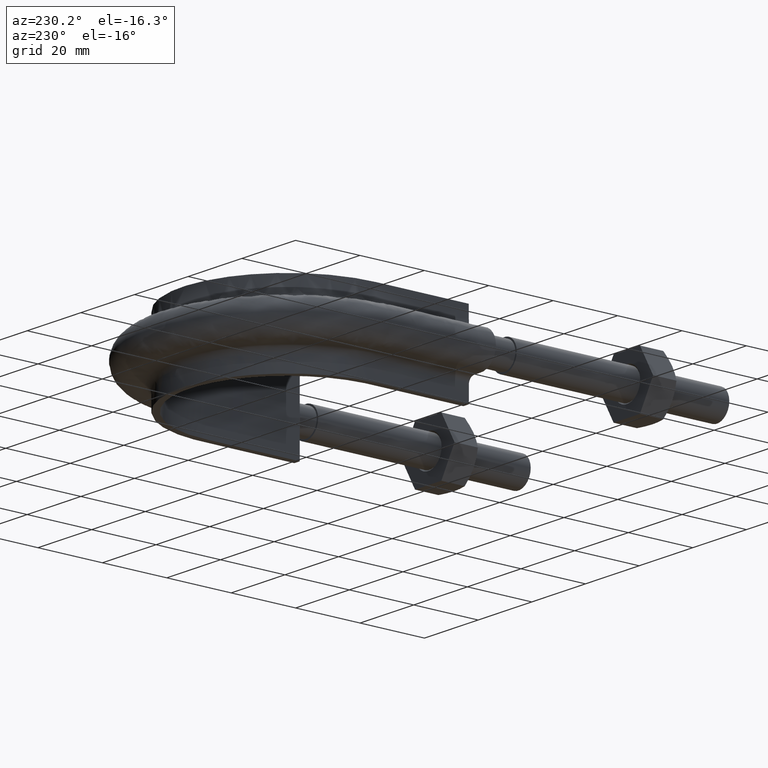
[diagram: clean part render]
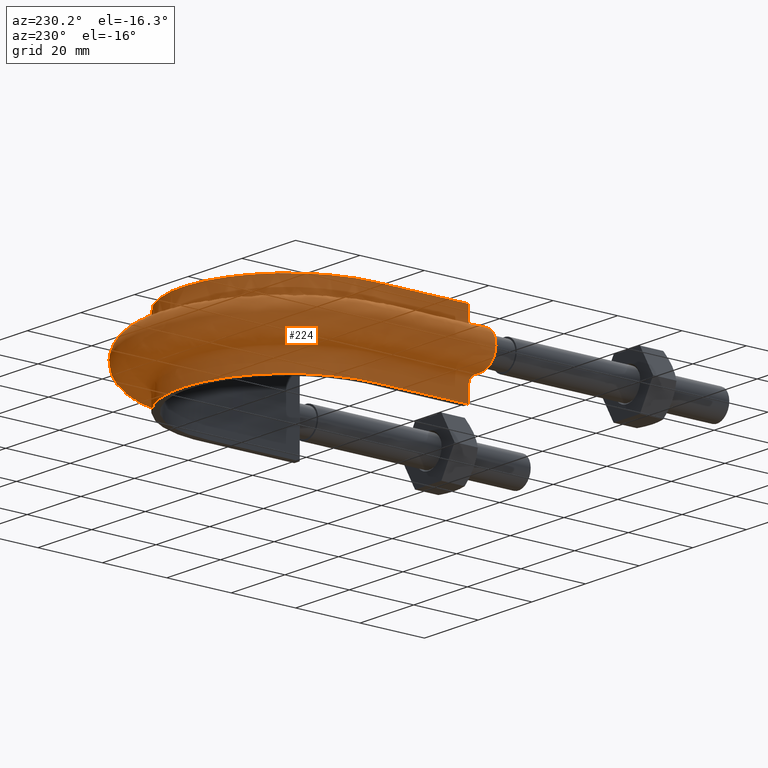
[diagram: same view with one face highlighted and labeled with its STEP entity id]
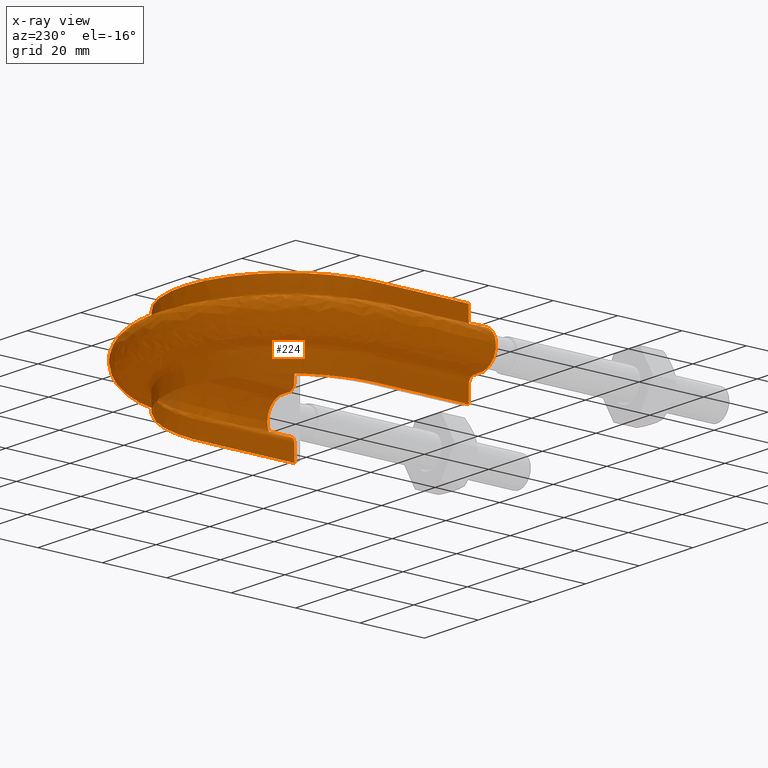
[diagram: x-ray of the same camera — body ghosted, the highlighted face saturated]
A machine part, auxiliary view. The second image highlights one B-rep face of the part: STEP entity #224.
The next image is the same camera in x-ray: the body ghosted, the highlighted face saturated — about 1% of this face is hidden behind the body in this view.
In plain terms, the highlighted face is a freeform B-spline surface patch.
Its self-contained STEP definition (entity closure, byte-faithful):
#224 = ADVANCED_FACE( '', ( #309 ), #310, .F. );
#309 = FACE_OUTER_BOUND( '', #631, .T. );
#310 = B_SPLINE_SURFACE_WITH_KNOTS( '', 3, 3, ( ( #632, #633, #634, #635, #636, #637, #638, #639, #640, #641, #642, #643, #644, #645, #646, #647, #648 ), ( #649, #650, #651, #652, #653, #654, #655, #656, #657, #658, #659, #660, #661, #662, #663, #664, #665 ), ( #666, #667, #668, #669, #670, #671, #672, #673, #674, #675, #676, #677, #678, #679, #680, #681, #682 ), ( #683, #684, #685, #686, #687, #688, #689, #690, #691, #692, #693, #694, #695, #696, #697, #698, #699 ), ( #700, #701, #702, #703, #704, #705, #706, #707, #708, #709, #710, #711, #712, #713, #714, #715, #716 ), ( #717, #718, #719, #720, #721, #722, #723, #724, #725, #726, #727, #728, #729, #730, #731, #732, #733 ), ( #734, #735, #736, #737, #738, #739, #740, #741, #742, #743, #744, #745, #746, #747, #748, #749, #750 ), ( #751, #752, #753, #754, #755, #756, #757, #758, #759, #760, #761, #762, #763, #764, #765, #766, #767 ), ( #768, #769, #770, #771, #772, #773, #774, #775, #776, #777, #778, #779, #780, #781, #782, #783, #784 ), ( #785, #786, #787, #788, #789, #790, #791, #792, #793, #794, #795, #796, #797, #798, #799, #800, #801 ), ( #802, #803, #804, #805, #806, #807, #808, #809, #810, #811, #812, #813, #814, #815, #816, #817, #818 ), ( #819, #820, #821, #822, #823, #824, #825, #826, #827, #828, #829, #830, #831, #832, #833, #834, #835 ), ( #836, #837, #838, #839, #840, #841, #842, #843, #844, #845, #846, #847, #848, #849, #850, #851, #852 ), ( #853, #854, #855, #856, #857, #858, #859, #860, #861, #862, #863, #864, #865, #866, #867, #868, #869 ), ( #870, #871, #872, #873, #874, #875, #876, #877, #878, #879, #880, #881, #882, #883, #884, #885, #886 ), ( #887, #888, #889, #890, #891, #892, #893, #894, #895, #896, #897, #898, #899, #900, #901, #902, #903 ), ( #904, #905, #906, #907, #908, #909, #910, #911, #912, #913, #914, #915, #916, #917, #918, #919, #920 ), ( #921, #922, #923, #924, #925, #926, #927, #928, #929, #930, #931, #932, #933, #934, #935, #936, #937 ), ( #938, #939, #940, #941, #942, #943, #944, #945, #946, #947, #948, #949, #950, #951, #952, #953, #954 ), ( #955, #956, #957, #958, #959, #960, #961, #962, #963, #964, #965, #966, #967, #968, #969, #970, #971 ), ( #972, #973, #974, #975, #976, #977, #978, #979, #980, #981, #982, #983, #984, #985, #986, #987, #988 ), ( #989, #990, #991, #992, #993, #994, #995, #996, #997, #998, #999, #1000, #1001, #1002, #1003, #1004, #1005 ), ( #1006, #1007, #1008, #1009, #1010, #1011, #1012, #1013, #1014, #1015, #1016, #1017, #1018, #1019, #1020, #1021, #1022 ), ( #1023, #1024, #1025, #1026, #1027, #1028, #1029, #1030, #1031, #1032, #1033, #1034, #1035, #1036, #1037, #1038, #1039 ), ( #1040, #1041, #1042, #1043, #1044, #1045, #1046, #1047, #1048, #1049, #1050, #1051, #1052, #1053, #1054, #1055, #1056 ), ( #1057, #1058, #1059, #1060, #1061, #1062, #1063, #1064, #1065, #1066, #1067, #1068, #1069, #1070, #1071, #1072, #1073 ), ( #1074, #1075, #1076, #1077, #1078, #1079, #1080, #1081, #1082, #1083, #1084, #1085, #1086, #1087, #1088, #1089, #1090 ), ( #1091, #1092, #1093, #1094, #1095, #1096, #1097, #1098, #1099, #1100, #1101, #1102, #1103, #1104, #1105, #1106, #1107 ), ( #1108, #1109, #1110, #1111, #1112, #1113, #1114, #1115, #1116, #1117, #1118, #1119, #1120, #1121, #1122, #1123, #1124 ), ( #1125, #1126, #1127, #1128, #1129, #1130, #1131, #1132, #1133, #1134, #1135, #1136, #1137, #1138, #1139, #1140, #1141 ), ( #1142, #1143, #1144, #1145, #1146, #1147, #1148, #1149, #1150, #1151, #1152, #1153, #1154, #1155, #1156, #1157, #1158 ) ), .UNSPECIFIED., .F., .F., .F., ( 4, 3, 1, 1, 1, 3, 3, 1, 1, 1, 3, 3, 1, 1, 1, 3, 4 ), ( 4, 3, 1, 1, 1, 1, 1, 1, 1, 3, 4 ), ( 0.105263157894737, 0.157894736842105, 0.210526315789474, 0.263157894736842, 0.315789473684211, 0.368421052631579, 0.421052631578947, 0.473684210526316, 0.526315789473684, 0.578947368421053, 0.631578947368421, 0.684210526315789, 0.736842105263158, 0.789473684210526, 0.842105263157895, 0.894736842105263, 0.947368421052632 ), ( 0.000000000000000, 1.00000000000000, 1.50000000000000, 2.00000000000000, 3.00000000000000, 4.00000000000000, 5.00000000000000, 6.00000000000000, 6.50000000000000, 7.00000000000000, 8.00000000000000 ), .UNSPECIFIED. );
#631 = EDGE_LOOP( '', ( #1512, #1513, #1514, #1515 ) );
#632 = CARTESIAN_POINT( '', ( -32.5000000000000, 69.4000000000000, 12.5000000000000 ) );
#633 = CARTESIAN_POINT( '', ( -32.5000000000000, 80.4333333333333, 12.5000000000000 ) );
#634 = CARTESIAN_POINT( '', ( -32.5000000000000, 91.4666666666667, 12.5000000000000 ) );
#635 = CARTESIAN_POINT( '', ( -32.5000000000000, 102.500000000000, 12.5000000000000 ) );
#636 = CARTESIAN_POINT( '', ( -32.5000000000000, 105.325542369813, 12.5000000000000 ) );
#637 = CARTESIAN_POINT( '', ( -31.7387347919768, 111.008617759312, 12.5000000000000 ) );
#638 = CARTESIAN_POINT( '', ( -27.3871545291852, 121.582731692400, 12.5000000000000 ) );
#639 = CARTESIAN_POINT( '', ( -17.0093196223625, 131.962325971844, 12.5000000000000 ) );
#640 = CARTESIAN_POINT( '', ( 3.23306948061794E-014, 136.518837014078, 12.5000000000000 ) );
#641 = CARTESIAN_POINT( '', ( 17.0093196223626, 131.962325971844, 12.5000000000000 ) );
#642 = CARTESIAN_POINT( '', ( 27.3871545291853, 121.582731692400, 12.5000000000000 ) );
#643 = CARTESIAN_POINT( '', ( 31.7387347919769, 111.008617759312, 12.5000000000000 ) );
#644 = CARTESIAN_POINT( '', ( 32.5000000000000, 105.325542369813, 12.5000000000000 ) );
#645 = CARTESIAN_POINT( '', ( 32.5000000000000, 102.500000000000, 12.5000000000000 ) );
#646 = CARTESIAN_POINT( '', ( 32.5000000000000, 91.4666666666666, 12.5000000000000 ) );
#647 = CARTESIAN_POINT( '', ( 32.5000000000000, 80.4333333333333, 12.5000000000000 ) );
#648 = CARTESIAN_POINT( '', ( 32.5000000000000, 69.4000000000000, 12.5000000000000 ) );
#649 = CARTESIAN_POINT( '', ( -32.5000000000000, 69.4000000000000, 10.8666666666667 ) );
#650 = CARTESIAN_POINT( '', ( -32.5000000000000, 80.4333333333333, 10.8666666666667 ) );
#651 = CARTESIAN_POINT( '', ( -32.5000000000000, 91.4666666666667, 10.8666666666667 ) );
#652 = CARTESIAN_POINT( '', ( -32.5000000000000, 102.500000000000, 10.8666666666667 ) );
#653 = CARTESIAN_POINT( '', ( -32.5000000000000, 105.325542369813, 10.8666666666667 ) );
#654 = CARTESIAN_POINT( '', ( -31.7387347919768, 111.008617759312, 10.8666666666667 ) );
#655 = CARTESIAN_POINT( '', ( -27.3871545291852, 121.582731692400, 10.8666666666667 ) );
#656 = CARTESIAN_POINT( '', ( -17.0093196223625, 131.962325971844, 10.8666666666667 ) );
#657 = CARTESIAN_POINT( '', ( 3.23306948061794E-014, 136.518837014078, 10.8666666666667 ) );
#658 = CARTESIAN_POINT( '', ( 17.0093196223626, 131.962325971844, 10.8666666666667 ) );
#659 = CARTESIAN_POINT( '', ( 27.3871545291853, 121.582731692400, 10.8666666666667 ) );
#660 = CARTESIAN_POINT( '', ( 31.7387347919769, 111.008617759312, 10.8666666666667 ) );
#661 = CARTESIAN_POINT( '', ( 32.5000000000000, 105.325542369813, 10.8666666666667 ) );
#662 = CARTESIAN_POINT( '', ( 32.5000000000000, 102.500000000000, 10.8666666666667 ) );
#663 = CARTESIAN_POINT( '', ( 32.5000000000000, 91.4666666666666, 10.8666666666667 ) );
#664 = CARTESIAN_POINT( '', ( 32.5000000000000, 80.4333333333333, 10.8666666666667 ) );
#665 = CARTESIAN_POINT( '', ( 32.5000000000000, 69.4000000000000, 10.8666666666667 ) );
#666 = CARTESIAN_POINT( '', ( -32.5000000000000, 69.4000000000000, 9.23333333333332 ) );
#667 = CARTESIAN_POINT( '', ( -32.5000000000000, 80.4333333333333, 9.23333333333332 ) );
#668 = CARTESIAN_POINT( '', ( -32.5000000000000, 91.4666666666666, 9.23333333333332 ) );
#669 = CARTESIAN_POINT( '', ( -32.5000000000000, 102.500000000000, 9.23333333333332 ) );
#670 = CARTESIAN_POINT( '', ( -32.5000000000000, 105.325542369813, 9.23333333333332 ) );
#671 = CARTESIAN_POINT( '', ( -31.7387347919768, 111.008617759312, 9.23333333333332 ) );
#672 = CARTESIAN_POINT( '', ( -27.3871545291852, 121.582731692400, 9.23333333333333 ) );
#673 = CARTESIAN_POINT( '', ( -17.0093196223625, 131.962325971844, 9.23333333333332 ) );
#674 = CARTESIAN_POINT( '', ( 2.62591626402606E-014, 136.518837014078, 9.23333333333332 ) );
#675 = CARTESIAN_POINT( '', ( 17.0093196223626, 131.962325971844, 9.23333333333332 ) );
#676 = CARTESIAN_POINT( '', ( 27.3871545291853, 121.582731692400, 9.23333333333333 ) );
#677 = CARTESIAN_POINT( '', ( 31.7387347919769, 111.008617759312, 9.23333333333332 ) );
#678 = CARTESIAN_POINT( '', ( 32.5000000000000, 105.325542369813, 9.23333333333332 ) );
#679 = CARTESIAN_POINT( '', ( 32.5000000000000, 102.500000000000, 9.23333333333332 ) );
#680 = CARTESIAN_POINT( '', ( 32.5000000000000, 91.4666666666666, 9.23333333333332 ) );
#681 = CARTESIAN_POINT( '', ( 32.5000000000000, 80.4333333333333, 9.23333333333332 ) );
#682 = CARTESIAN_POINT( '', ( 32.5000000000000, 69.4000000000000, 9.23333333333332 ) );
#683 = CARTESIAN_POINT( '', ( -32.5000000000000, 69.4000000000000, 7.59999999999998 ) );
#684 = CARTESIAN_POINT( '', ( -32.5000000000000, 80.4333333333333, 7.59999999999998 ) );
#685 = CARTESIAN_POINT( '', ( -32.5000000000000, 91.4666666666666, 7.59999999999998 ) );
#686 = CARTESIAN_POINT( '', ( -32.5000000000000, 102.500000000000, 7.59999999999998 ) );
#687 = CARTESIAN_POINT( '', ( -32.5000000000000, 105.325542369813, 7.59999999999998 ) );
#688 = CARTESIAN_POINT( '', ( -31.7387347919768, 111.008617759312, 7.59999999999998 ) );
#689 = CARTESIAN_POINT( '', ( -27.3871545291852, 121.582731692400, 7.59999999999999 ) );
#690 = CARTESIAN_POINT( '', ( -17.0093196223625, 131.962325971844, 7.59999999999998 ) );
#691 = CARTESIAN_POINT( '', ( 2.53918009022722E-014, 136.518837014078, 7.59999999999999 ) );
#692 = CARTESIAN_POINT( '', ( 17.0093196223626, 131.962325971844, 7.59999999999998 ) );
#693 = CARTESIAN_POINT( '', ( 27.3871545291853, 121.582731692400, 7.59999999999999 ) );
#694 = CARTESIAN_POINT( '', ( 31.7387347919769, 111.008617759312, 7.59999999999998 ) );
#695 = CARTESIAN_POINT( '', ( 32.5000000000000, 105.325542369813, 7.59999999999998 ) );
#696 = CARTESIAN_POINT( '', ( 32.5000000000000, 102.500000000000, 7.59999999999998 ) );
#697 = CARTESIAN_POINT( '', ( 32.5000000000000, 91.4666666666666, 7.59999999999998 ) );
#698 = CARTESIAN_POINT( '', ( 32.5000000000000, 80.4333333333333, 7.59999999999998 ) );
#699 = CARTESIAN_POINT( '', ( 32.5000000000000, 69.4000000000000, 7.59999999999998 ) );
#700 = CARTESIAN_POINT( '', ( -32.5000000000000, 69.4000000000000, 7.33823584172332 ) );
#701 = CARTESIAN_POINT( '', ( -32.5000000000000, 80.4333333333333, 7.33823584172332 ) );
#702 = CARTESIAN_POINT( '', ( -32.5000000000000, 91.4666666666666, 7.33823584172332 ) );
#703 = CARTESIAN_POINT( '', ( -32.5000000000000, 102.500000000000, 7.33823584172332 ) );
#704 = CARTESIAN_POINT( '', ( -32.5000000000000, 105.325542369813, 7.33823584172332 ) );
#705 = CARTESIAN_POINT( '', ( -31.7387347919768, 111.008617759312, 7.33823584172331 ) );
#706 = CARTESIAN_POINT( '', ( -27.3871545291852, 121.582731692400, 7.33823584172332 ) );
#707 = CARTESIAN_POINT( '', ( -17.0093196223625, 131.962325971844, 7.33823584172331 ) );
#708 = CARTESIAN_POINT( '', ( 2.45244391642838E-014, 136.518837014078, 7.33823584172332 ) );
#709 = CARTESIAN_POINT( '', ( 17.0093196223626, 131.962325971844, 7.33823584172331 ) );
#710 = CARTESIAN_POINT( '', ( 27.3871545291853, 121.582731692400, 7.33823584172332 ) );
#711 = CARTESIAN_POINT( '', ( 31.7387347919769, 111.008617759312, 7.33823584172331 ) );
#712 = CARTESIAN_POINT( '', ( 32.5000000000000, 105.325542369813, 7.33823584172332 ) );
#713 = CARTESIAN_POINT( '', ( 32.5000000000000, 102.500000000000, 7.33823584172332 ) );
#714 = CARTESIAN_POINT( '', ( 32.5000000000000, 91.4666666666666, 7.33823584172332 ) );
#715 = CARTESIAN_POINT( '', ( 32.5000000000000, 80.4333333333333, 7.33823584172332 ) );
#716 = CARTESIAN_POINT( '', ( 32.5000000000000, 69.4000000000000, 7.33823584172332 ) );
#717 = CARTESIAN_POINT( '', ( -32.6041362568359, 69.4000000000000, 6.81470752516999 ) );
#718 = CARTESIAN_POINT( '', ( -32.6041362568359, 80.4333333333333, 6.81470752516999 ) );
#719 = CARTESIAN_POINT( '', ( -32.6041362568359, 91.4666666666666, 6.81470752516999 ) );
#720 = CARTESIAN_POINT( '', ( -32.6041362568359, 102.500000000000, 6.81470752516999 ) );
#721 = CARTESIAN_POINT( '', ( -32.6041362568359, 105.334843445120, 6.81470752516999 ) );
#722 = CARTESIAN_POINT( '', ( -31.8404751803345, 111.035780677115, 6.81470752516999 ) );
#723 = CARTESIAN_POINT( '', ( -27.4748832731721, 121.643934525204, 6.81470752517000 ) );
#724 = CARTESIAN_POINT( '', ( -17.0638286428161, 132.056707813853, 6.81470752516999 ) );
#725 = CARTESIAN_POINT( '', ( 2.45377890223810E-014, 136.627850478327, 6.81470752516999 ) );
#726 = CARTESIAN_POINT( '', ( 17.0638286428161, 132.056707813853, 6.81470752516999 ) );
#727 = CARTESIAN_POINT( '', ( 27.4748832731721, 121.643934525204, 6.81470752517000 ) );
#728 = CARTESIAN_POINT( '', ( 31.8404751803346, 111.035780677115, 6.81470752516999 ) );
#729 = CARTESIAN_POINT( '', ( 32.6041362568360, 105.334843445120, 6.81470752516999 ) );
#730 = CARTESIAN_POINT( '', ( 32.6041362568360, 102.500000000000, 6.81470752516999 ) );
#731 = CARTESIAN_POINT( '', ( 32.6041362568360, 91.4666666666666, 6.81470752516999 ) );
#732 = CARTESIAN_POINT( '', ( 32.6041362568359, 80.4333333333333, 6.81470752516999 ) );
#733 = CARTESIAN_POINT( '', ( 32.6041362568359, 69.4000000000000, 6.81470752516999 ) );
#734 = CARTESIAN_POINT( '', ( -33.0489687109389, 69.4000000000000, 6.14896871093886 ) );
#735 = CARTESIAN_POINT( '', ( -33.0489687109389, 80.4333333333333, 6.14896871093886 ) );
#736 = CARTESIAN_POINT( '', ( -33.0489687109389, 91.4666666666666, 6.14896871093886 ) );
#737 = CARTESIAN_POINT( '', ( -33.0489687109389, 102.500000000000, 6.14896871093886 ) );
#738 = CARTESIAN_POINT( '', ( -33.0489687109389, 105.374574277402, 6.14896871093886 ) );
#739 = CARTESIAN_POINT( '', ( -32.2750733501712, 111.151810845228, 6.14896871093886 ) );
#740 = CARTESIAN_POINT( '', ( -27.8496287620996, 121.905370908091, 6.14896871093886 ) );
#741 = CARTESIAN_POINT( '', ( -17.2966714784992, 132.459872933086, 6.14896871093886 ) );
#742 = CARTESIAN_POINT( '', ( 2.45948147915005E-014, 137.093516599865, 6.14896871093886 ) );
#743 = CARTESIAN_POINT( '', ( 17.2966714784993, 132.459872933086, 6.14896871093885 ) );
#744 = CARTESIAN_POINT( '', ( 27.8496287620997, 121.905370908091, 6.14896871093886 ) );
#745 = CARTESIAN_POINT( '', ( 32.2750733501712, 111.151810845228, 6.14896871093885 ) );
#746 = CARTESIAN_POINT( '', ( 33.0489687109389, 105.374574277402, 6.14896871093886 ) );
#747 = CARTESIAN_POINT( '', ( 33.0489687109389, 102.500000000000, 6.14896871093886 ) );
#748 = CARTESIAN_POINT( '', ( 33.0489687109389, 91.4666666666666, 6.14896871093886 ) );
#749 = CARTESIAN_POINT( '', ( 33.0489687109389, 80.4333333333333, 6.14896871093886 ) );
#750 = CARTESIAN_POINT( '', ( 33.0489687109389, 69.4000000000000, 6.14896871093886 ) );
#751 = CARTESIAN_POINT( '', ( -33.7147075251700, 69.4000000000000, 5.70413625683589 ) );
#752 = CARTESIAN_POINT( '', ( -33.7147075251700, 80.4333333333333, 5.70413625683589 ) );
#753 = CARTESIAN_POINT( '', ( -33.7147075251700, 91.4666666666666, 5.70413625683589 ) );
#754 = CARTESIAN_POINT( '', ( -33.7147075251700, 102.500000000000, 5.70413625683589 ) );
#755 = CARTESIAN_POINT( '', ( -33.7147075251700, 105.434035669949, 5.70413625683589 ) );
#756 = CARTESIAN_POINT( '', ( -32.9254954755926, 111.325462263469, 5.70413625683589 ) );
#757 = CARTESIAN_POINT( '', ( -28.4104750203614, 122.296638105289, 5.70413625683589 ) );
#758 = CARTESIAN_POINT( '', ( -17.6451454081780, 133.063252173835, 5.70413625683589 ) );
#759 = CARTESIAN_POINT( '', ( 2.38127981481968E-014, 137.790435200837, 5.70413625683589 ) );
#760 = CARTESIAN_POINT( '', ( 17.6451454081780, 133.063252173835, 5.70413625683589 ) );
#761 = CARTESIAN_POINT( '', ( 28.4104750203615, 122.296638105289, 5.70413625683589 ) );
#762 = CARTESIAN_POINT( '', ( 32.9254954755927, 111.325462263469, 5.70413625683589 ) );
#763 = CARTESIAN_POINT( '', ( 33.7147075251700, 105.434035669949, 5.70413625683589 ) );
#764 = CARTESIAN_POINT( '', ( 33.7147075251700, 102.500000000000, 5.70413625683589 ) );
#765 = CARTESIAN_POINT( '', ( 33.7147075251700, 91.4666666666666, 5.70413625683589 ) );
#766 = CARTESIAN_POINT( '', ( 33.7147075251700, 80.4333333333333, 5.70413625683589 ) );
#767 = CARTESIAN_POINT( '', ( 33.7147075251700, 69.4000000000000, 5.70413625683589 ) );
#768 = CARTESIAN_POINT( '', ( -34.2382358417233, 69.4000000000000, 5.59999999999998 ) );
#769 = CARTESIAN_POINT( '', ( -34.2382358417233, 80.4333333333333, 5.59999999999998 ) );
#770 = CARTESIAN_POINT( '', ( -34.2382358417233, 91.4666666666666, 5.59999999999998 ) );
#771 = CARTESIAN_POINT( '', ( -34.2382358417233, 102.500000000000, 5.59999999999998 ) );
#772 = CARTESIAN_POINT( '', ( -34.2382358417233, 105.480795333161, 5.59999999999998 ) );
#773 = CARTESIAN_POINT( '', ( -33.4369789479273, 111.462019472865, 5.59999999999998 ) );
#774 = CARTESIAN_POINT( '', ( -28.8515171996013, 122.604325523677, 5.59999999999999 ) );
#775 = CARTESIAN_POINT( '', ( -17.9191807593812, 133.537741735507, 5.59999999999998 ) );
#776 = CARTESIAN_POINT( '', ( 2.73493593689767E-014, 138.338482894831, 5.59999999999998 ) );
#777 = CARTESIAN_POINT( '', ( 17.9191807593812, 133.537741735507, 5.59999999999998 ) );
#778 = CARTESIAN_POINT( '', ( 28.8515171996013, 122.604325523677, 5.59999999999999 ) );
#779 = CARTESIAN_POINT( '', ( 33.4369789479274, 111.462019472865, 5.59999999999998 ) );
#780 = CARTESIAN_POINT( '', ( 34.2382358417234, 105.480795333161, 5.59999999999998 ) );
#781 = CARTESIAN_POINT( '', ( 34.2382358417234, 102.500000000000, 5.59999999999998 ) );
#782 = CARTESIAN_POINT( '', ( 34.2382358417234, 91.4666666666666, 5.59999999999998 ) );
#783 = CARTESIAN_POINT( '', ( 34.2382358417234, 80.4333333333333, 5.59999999999998 ) );
#784 = CARTESIAN_POINT( '', ( 34.2382358417234, 69.4000000000000, 5.59999999999998 ) );
#785 = CARTESIAN_POINT( '', ( -34.5000000000000, 69.4000000000000, 5.59999999999998 ) );
#786 = CARTESIAN_POINT( '', ( -34.5000000000000, 80.4333333333333, 5.59999999999998 ) );
#787 = CARTESIAN_POINT( '', ( -34.5000000000000, 91.4666666666666, 5.59999999999998 ) );
#788 = CARTESIAN_POINT( '', ( -34.5000000000000, 102.500000000000, 5.59999999999998 ) );
#789 = CARTESIAN_POINT( '', ( -34.5000000000000, 105.504175164767, 5.59999999999998 ) );
#790 = CARTESIAN_POINT( '', ( -33.6927206840947, 111.530298077564, 5.59999999999998 ) );
#791 = CARTESIAN_POINT( '', ( -29.0720382892212, 122.758169232871, 5.59999999999999 ) );
#792 = CARTESIAN_POINT( '', ( -18.0561984349828, 133.774986516344, 5.59999999999998 ) );
#793 = CARTESIAN_POINT( '', ( 2.56481930274130E-014, 138.612506741828, 5.59999999999998 ) );
#794 = CARTESIAN_POINT( '', ( 18.0561984349828, 133.774986516344, 5.59999999999998 ) );
#795 = CARTESIAN_POINT( '', ( 29.0720382892212, 122.758169232871, 5.59999999999999 ) );
#796 = CARTESIAN_POINT( '', ( 33.6927206840947, 111.530298077564, 5.59999999999998 ) );
#797 = CARTESIAN_POINT( '', ( 34.5000000000000, 105.504175164767, 5.59999999999998 ) );
#798 = CARTESIAN_POINT( '', ( 34.5000000000000, 102.500000000000, 5.59999999999998 ) );
#799 = CARTESIAN_POINT( '', ( 34.5000000000000, 91.4666666666666, 5.59999999999998 ) );
#800 = CARTESIAN_POINT( '', ( 34.5000000000000, 80.4333333333333, 5.59999999999998 ) );
#801 = CARTESIAN_POINT( '', ( 34.5000000000000, 69.4000000000000, 5.59999999999998 ) );
#802 = CARTESIAN_POINT( '', ( -35.3333333333333, 69.4000000000000, 5.60000000000000 ) );
#803 = CARTESIAN_POINT( '', ( -35.3333333333333, 80.4333333333333, 5.60000000000000 ) );
#804 = CARTESIAN_POINT( '', ( -35.3333333333333, 91.4666666666666, 5.60000000000000 ) );
#805 = CARTESIAN_POINT( '', ( -35.3333333333333, 102.500000000000, 5.60000000000000 ) );
#806 = CARTESIAN_POINT( '', ( -35.3333333333333, 105.578605495998, 5.60000000000000 ) );
#807 = CARTESIAN_POINT( '', ( -34.5068814724771, 111.747664876836, 5.60000000000000 ) );
#808 = CARTESIAN_POINT( '', ( -29.7740731892362, 123.247934874734, 5.60000000000000 ) );
#809 = CARTESIAN_POINT( '', ( -18.4923979402412, 134.530261743218, 5.60000000000000 ) );
#810 = CARTESIAN_POINT( '', ( 2.57550230795551E-014, 139.484869128391, 5.60000000000000 ) );
#811 = CARTESIAN_POINT( '', ( 18.4923979402412, 134.530261743218, 5.60000000000000 ) );
#812 = CARTESIAN_POINT( '', ( 29.7740731892362, 123.247934874734, 5.60000000000000 ) );
#813 = CARTESIAN_POINT( '', ( 34.5068814724771, 111.747664876835, 5.59999999999999 ) );
#814 = CARTESIAN_POINT( '', ( 35.3333333333334, 105.578605495998, 5.60000000000000 ) );
#815 = CARTESIAN_POINT( '', ( 35.3333333333334, 102.500000000000, 5.60000000000000 ) );
#816 = CARTESIAN_POINT( '', ( 35.3333333333334, 91.4666666666666, 5.60000000000000 ) );
#817 = CARTESIAN_POINT( '', ( 35.3333333333334, 80.4333333333333, 5.60000000000000 ) );
#818 = CARTESIAN_POINT( '', ( 35.3333333333334, 69.4000000000000, 5.60000000000000 ) );
#819 = CARTESIAN_POINT( '', ( -36.1666666666667, 69.4000000000000, 5.60000000000000 ) );
#820 = CARTESIAN_POINT( '', ( -36.1666666666667, 80.4333333333333, 5.60000000000000 ) );
#821 = CARTESIAN_POINT( '', ( -36.1666666666667, 91.4666666666666, 5.60000000000000 ) );
#822 = CARTESIAN_POINT( '', ( -36.1666666666667, 102.500000000000, 5.60000000000000 ) );
#823 = CARTESIAN_POINT( '', ( -36.1666666666667, 105.653035827229, 5.60000000000000 ) );
#824 = CARTESIAN_POINT( '', ( -35.3210422608595, 111.965031676107, 5.60000000000000 ) );
#825 = CARTESIAN_POINT( '', ( -30.4761080892512, 123.737700516597, 5.60000000000000 ) );
#826 = CARTESIAN_POINT( '', ( -18.9285974454996, 135.285536970093, 5.60000000000000 ) );
#827 = CARTESIAN_POINT( '', ( 2.58618531316971E-014, 140.357231514953, 5.60000000000000 ) );
#828 = CARTESIAN_POINT( '', ( 18.9285974454996, 135.285536970093, 5.60000000000000 ) );
#829 = CARTESIAN_POINT( '', ( 30.4761080892512, 123.737700516597, 5.60000000000000 ) );
#830 = CARTESIAN_POINT( '', ( 35.3210422608596, 111.965031676107, 5.59999999999999 ) );
#831 = CARTESIAN_POINT( '', ( 36.1666666666667, 105.653035827229, 5.60000000000000 ) );
#832 = CARTESIAN_POINT( '', ( 36.1666666666667, 102.500000000000, 5.60000000000000 ) );
#833 = CARTESIAN_POINT( '', ( 36.1666666666667, 91.4666666666666, 5.60000000000000 ) );
#834 = CARTESIAN_POINT( '', ( 36.1666666666667, 80.4333333333333, 5.60000000000000 ) );
#835 = CARTESIAN_POINT( '', ( 36.1666666666667, 69.4000000000000, 5.60000000000000 ) );
#836 = CARTESIAN_POINT( '', ( -37.0000000000000, 69.4000000000000, 5.60000000000000 ) );
#837 = CARTESIAN_POINT( '', ( -37.0000000000000, 80.4333333333333, 5.60000000000000 ) );
#838 = CARTESIAN_POINT( '', ( -37.0000000000000, 91.4666666666666, 5.60000000000000 ) );
#839 = CARTESIAN_POINT( '', ( -37.0000000000000, 102.500000000000, 5.60000000000000 ) );
#840 = CARTESIAN_POINT( '', ( -37.0000000000000, 105.727466158460, 5.60000000000000 ) );
#841 = CARTESIAN_POINT( '', ( -36.1352030492419, 112.182398475379, 5.60000000000000 ) );
#842 = CARTESIAN_POINT( '', ( -31.1781429892662, 124.227466158460, 5.60000000000000 ) );
#843 = CARTESIAN_POINT( '', ( -19.3647969507580, 136.040812196968, 5.60000000000000 ) );
#844 = CARTESIAN_POINT( '', ( 2.24992362318855E-014, 141.229593901516, 5.60000000000000 ) );
#845 = CARTESIAN_POINT( '', ( 19.3647969507581, 136.040812196968, 5.60000000000000 ) );
#846 = CARTESIAN_POINT( '', ( 31.1781429892662, 124.227466158460, 5.60000000000000 ) );
#847 = CARTESIAN_POINT( '', ( 36.1352030492420, 112.182398475379, 5.59999999999999 ) );
#848 = CARTESIAN_POINT( '', ( 37.0000000000000, 105.727466158460, 5.60000000000000 ) );
#849 = CARTESIAN_POINT( '', ( 37.0000000000000, 102.500000000000, 5.60000000000000 ) );
#850 = CARTESIAN_POINT( '', ( 37.0000000000000, 91.4666666666666, 5.60000000000000 ) );
#851 = CARTESIAN_POINT( '', ( 37.0000000000000, 80.4333333333333, 5.60000000000000 ) );
#852 = CARTESIAN_POINT( '', ( 37.0000000000000, 69.4000000000000, 5.60000000000000 ) );
#853 = CARTESIAN_POINT( '', ( -38.4627416997969, 69.4000000000000, 5.60000000000000 ) );
#854 = CARTESIAN_POINT( '', ( -38.4627416997969, 80.4333333333333, 5.60000000000000 ) );
#855 = CARTESIAN_POINT( '', ( -38.4627416997969, 91.4666666666666, 5.60000000000000 ) );
#856 = CARTESIAN_POINT( '', ( -38.4627416997969, 102.500000000000, 5.60000000000000 ) );
#857 = CARTESIAN_POINT( '', ( -38.4627416997969, 105.858112977525, 5.60000000000000 ) );
#858 = CARTESIAN_POINT( '', ( -37.5642913718498, 112.563940253114, 5.59999999999999 ) );
#859 = CARTESIAN_POINT( '', ( -32.4104178568238, 125.087146911437, 5.60000000000000 ) );
#860 = CARTESIAN_POINT( '', ( -20.1304535976848, 137.366539279976, 5.59999999999999 ) );
#861 = CARTESIAN_POINT( '', ( 2.35541156963454E-014, 142.760842909708, 5.60000000000000 ) );
#862 = CARTESIAN_POINT( '', ( 20.1304535976848, 137.366539279976, 5.59999999999999 ) );
#863 = CARTESIAN_POINT( '', ( 32.4104178568238, 125.087146911437, 5.60000000000000 ) );
#864 = CARTESIAN_POINT( '', ( 37.5642913718498, 112.563940253114, 5.59999999999999 ) );
#865 = CARTESIAN_POINT( '', ( 38.4627416997970, 105.858112977525, 5.60000000000000 ) );
#866 = CARTESIAN_POINT( '', ( 38.4627416997970, 102.500000000000, 5.60000000000000 ) );
#867 = CARTESIAN_POINT( '', ( 38.4627416997970, 91.4666666666666, 5.60000000000000 ) );
#868 = CARTESIAN_POINT( '', ( 38.4627416997970, 80.4333333333333, 5.60000000000000 ) );
#869 = CARTESIAN_POINT( '', ( 38.4627416997970, 69.4000000000000, 5.60000000000000 ) );
#870 = CARTESIAN_POINT( '', ( -41.3882250993908, 69.4000000000000, 4.38822509939085 ) );
#871 = CARTESIAN_POINT( '', ( -41.3882250993908, 80.4333333333333, 4.38822509939085 ) );
#872 = CARTESIAN_POINT( '', ( -41.3882250993908, 91.4666666666666, 4.38822509939085 ) );
#873 = CARTESIAN_POINT( '', ( -41.3882250993908, 102.500000000000, 4.38822509939085 ) );
#874 = CARTESIAN_POINT( '', ( -41.3882250993908, 106.119406615656, 4.38822509939085 ) );
#875 = CARTESIAN_POINT( '', ( -40.4224680170654, 113.327023808585, 4.38822509939085 ) );
#876 = CARTESIAN_POINT( '', ( -34.8749675919391, 126.806508417390, 4.38822509939085 ) );
#877 = CARTESIAN_POINT( '', ( -21.6617668915383, 140.017993445992, 4.38822509939085 ) );
#878 = CARTESIAN_POINT( '', ( 2.39291511492885E-014, 145.823340926090, 4.38822509939085 ) );
#879 = CARTESIAN_POINT( '', ( 21.6617668915383, 140.017993445992, 4.38822509939085 ) );
#880 = CARTESIAN_POINT( '', ( 34.8749675919392, 126.806508417390, 4.38822509939085 ) );
#881 = CARTESIAN_POINT( '', ( 40.4224680170655, 113.327023808585, 4.38822509939085 ) );
#882 = CARTESIAN_POINT( '', ( 41.3882250993909, 106.119406615656, 4.38822509939085 ) );
#883 = CARTESIAN_POINT( '', ( 41.3882250993909, 102.500000000000, 4.38822509939085 ) );
#884 = CARTESIAN_POINT( '', ( 41.3882250993909, 91.4666666666666, 4.38822509939085 ) );
#885 = CARTESIAN_POINT( '', ( 41.3882250993909, 80.4333333333333, 4.38822509939085 ) );
#886 = CARTESIAN_POINT( '', ( 41.3882250993909, 69.4000000000000, 4.38822509939085 ) );
#887 = CARTESIAN_POINT( '', ( -43.2058874503046, 69.4000000000000, -1.07693261045861E-015 ) );
#888 = CARTESIAN_POINT( '', ( -43.2058874503046, 80.4333333333333, -1.07693261045861E-015 ) );
#889 = CARTESIAN_POINT( '', ( -43.2058874503046, 91.4666666666666, -1.07693261045861E-015 ) );
#890 = CARTESIAN_POINT( '', ( -43.2058874503046, 102.500000000000, -1.07693261045861E-015 ) );
#891 = CARTESIAN_POINT( '', ( -43.2058874503046, 106.281753668669, -1.07693261045861E-015 ) );
#892 = CARTESIAN_POINT( '', ( -42.1983113122250, 113.801143145435, -1.07693261045861E-015 ) );
#893 = CARTESIAN_POINT( '', ( -36.4062424800808, 127.874782698973, -1.07693261045861E-015 ) );
#894 = CARTESIAN_POINT( '', ( -22.6132029933728, 141.665395859353, -1.07693261045861E-015 ) );
#895 = CARTESIAN_POINT( '', ( 2.58968917817350E-014, 147.726133245780, -1.07693261045861E-015 ) );
#896 = CARTESIAN_POINT( '', ( 22.6132029933728, 141.665395859353, -1.07693261045861E-015 ) );
#897 = CARTESIAN_POINT( '', ( 36.4062424800808, 127.874782698973, -1.07693261045861E-015 ) );
#898 = CARTESIAN_POINT( '', ( 42.1983113122251, 113.801143145435, -1.07693261045861E-015 ) );
#899 = CARTESIAN_POINT( '', ( 43.2058874503046, 106.281753668669, -1.07693261045861E-015 ) );
#900 = CARTESIAN_POINT( '', ( 43.2058874503046, 102.500000000000, -1.07693261045861E-015 ) );
#901 = CARTESIAN_POINT( '', ( 43.2058874503046, 91.4666666666666, -1.07693261045861E-015 ) );
#902 = CARTESIAN_POINT( '', ( 43.2058874503046, 80.4333333333333, -1.07693261045861E-015 ) );
#903 = CARTESIAN_POINT( '', ( 43.2058874503046, 69.4000000000000, -1.07693261045861E-015 ) );
#904 = CARTESIAN_POINT( '', ( -41.3882250993908, 69.4000000000000, -4.38822509939086 ) );
#905 = CARTESIAN_POINT( '', ( -41.3882250993908, 80.4333333333333, -4.38822509939086 ) );
#906 = CARTESIAN_POINT( '', ( -41.3882250993908, 91.4666666666666, -4.38822509939086 ) );
#907 = CARTESIAN_POINT( '', ( -41.3882250993908, 102.500000000000, -4.38822509939086 ) );
#908 = CARTESIAN_POINT( '', ( -41.3882250993908, 106.119406615656, -4.38822509939086 ) );
#909 = CARTESIAN_POINT( '', ( -40.4224680170654, 113.327023808585, -4.38822509939086 ) );
#910 = CARTESIAN_POINT( '', ( -34.8749675919391, 126.806508417390, -4.38822509939086 ) );
#911 = CARTESIAN_POINT( '', ( -21.6617668915383, 140.017993445992, -4.38822509939086 ) );
#912 = CARTESIAN_POINT( '', ( 2.39291511492885E-014, 145.823340926090, -4.38822509939086 ) );
#913 = CARTESIAN_POINT( '', ( 21.6617668915383, 140.017993445992, -4.38822509939086 ) );
#914 = CARTESIAN_POINT( '', ( 34.8749675919392, 126.806508417390, -4.38822509939086 ) );
#915 = CARTESIAN_POINT( '', ( 40.4224680170655, 113.327023808585, -4.38822509939086 ) );
#916 = CARTESIAN_POINT( '', ( 41.3882250993909, 106.119406615656, -4.38822509939086 ) );
#917 = CARTESIAN_POINT( '', ( 41.3882250993909, 102.500000000000, -4.38822509939086 ) );
#918 = CARTESIAN_POINT( '', ( 41.3882250993909, 91.4666666666666, -4.38822509939086 ) );
#919 = CARTESIAN_POINT( '', ( 41.3882250993909, 80.4333333333333, -4.38822509939086 ) );
#920 = CARTESIAN_POINT( '', ( 41.3882250993909, 69.4000000000000, -4.38822509939086 ) );
#921 = CARTESIAN_POINT( '', ( -38.4627416997969, 69.4000000000000, -5.60000000000000 ) );
#922 = CARTESIAN_POINT( '', ( -38.4627416997969, 80.4333333333333, -5.60000000000000 ) );
#923 = CARTESIAN_POINT( '', ( -38.4627416997969, 91.4666666666666, -5.60000000000000 ) );
#924 = CARTESIAN_POINT( '', ( -38.4627416997969, 102.500000000000, -5.60000000000000 ) );
#925 = CARTESIAN_POINT( '', ( -38.4627416997969, 105.858112977525, -5.60000000000000 ) );
#926 = CARTESIAN_POINT( '', ( -37.5642913718498, 112.563940253114, -5.60000000000000 ) );
#927 = CARTESIAN_POINT( '', ( -32.4104178568238, 125.087146911437, -5.60000000000001 ) );
#928 = CARTESIAN_POINT( '', ( -20.1304535976848, 137.366539279976, -5.60000000000000 ) );
#929 = CARTESIAN_POINT( '', ( 2.35541156963454E-014, 142.760842909708, -5.60000000000000 ) );
#930 = CARTESIAN_POINT( '', ( 20.1304535976848, 137.366539279976, -5.60000000000000 ) );
#931 = CARTESIAN_POINT( '', ( 32.4104178568238, 125.087146911437, -5.60000000000001 ) );
#932 = CARTESIAN_POINT( '', ( 37.5642913718498, 112.563940253114, -5.60000000000000 ) );
#933 = CARTESIAN_POINT( '', ( 38.4627416997970, 105.858112977525, -5.60000000000000 ) );
#934 = CARTESIAN_POINT( '', ( 38.4627416997970, 102.500000000000, -5.60000000000000 ) );
#935 = CARTESIAN_POINT( '', ( 38.4627416997970, 91.4666666666666, -5.60000000000000 ) );
#936 = CARTESIAN_POINT( '', ( 38.4627416997970, 80.4333333333333, -5.60000000000000 ) );
#937 = CARTESIAN_POINT( '', ( 38.4627416997970, 69.4000000000000, -5.60000000000000 ) );
#938 = CARTESIAN_POINT( '', ( -37.0000000000000, 69.4000000000000, -5.60000000000000 ) );
#939 = CARTESIAN_POINT( '', ( -37.0000000000000, 80.4333333333333, -5.60000000000000 ) );
#940 = CARTESIAN_POINT( '', ( -37.0000000000000, 91.4666666666666, -5.60000000000000 ) );
#941 = CARTESIAN_POINT( '', ( -37.0000000000000, 102.500000000000, -5.60000000000000 ) );
#942 = CARTESIAN_POINT( '', ( -37.0000000000000, 105.727466158460, -5.60000000000000 ) );
#943 = CARTESIAN_POINT( '', ( -36.1352030492419, 112.182398475379, -5.60000000000000 ) );
#944 = CARTESIAN_POINT( '', ( -31.1781429892662, 124.227466158460, -5.60000000000001 ) );
#945 = CARTESIAN_POINT( '', ( -19.3647969507580, 136.040812196968, -5.60000000000000 ) );
#946 = CARTESIAN_POINT( '', ( 2.51013214458507E-014, 141.229593901516, -5.60000000000000 ) );
#947 = CARTESIAN_POINT( '', ( 19.3647969507581, 136.040812196968, -5.60000000000000 ) );
#948 = CARTESIAN_POINT( '', ( 31.1781429892662, 124.227466158460, -5.60000000000001 ) );
#949 = CARTESIAN_POINT( '', ( 36.1352030492420, 112.182398475379, -5.60000000000000 ) );
#950 = CARTESIAN_POINT( '', ( 37.0000000000000, 105.727466158460, -5.60000000000000 ) );
#951 = CARTESIAN_POINT( '', ( 37.0000000000000, 102.500000000000, -5.60000000000000 ) );
#952 = CARTESIAN_POINT( '', ( 37.0000000000000, 91.4666666666666, -5.60000000000000 ) );
#953 = CARTESIAN_POINT( '', ( 37.0000000000000, 80.4333333333333, -5.60000000000000 ) );
#954 = CARTESIAN_POINT( '', ( 37.0000000000000, 69.4000000000000, -5.60000000000000 ) );
#955 = CARTESIAN_POINT( '', ( -36.1666666666667, 69.4000000000000, -5.60000000000000 ) );
#956 = CARTESIAN_POINT( '', ( -36.1666666666667, 80.4333333333333, -5.60000000000000 ) );
#957 = CARTESIAN_POINT( '', ( -36.1666666666667, 91.4666666666666, -5.60000000000000 ) );
#958 = CARTESIAN_POINT( '', ( -36.1666666666667, 102.500000000000, -5.60000000000000 ) );
#959 = CARTESIAN_POINT( '', ( -36.1666666666667, 105.653035827229, -5.60000000000000 ) );
#960 = CARTESIAN_POINT( '', ( -35.3210422608595, 111.965031676107, -5.60000000000000 ) );
#961 = CARTESIAN_POINT( '', ( -30.4761080892512, 123.737700516597, -5.60000000000001 ) );
#962 = CARTESIAN_POINT( '', ( -18.9285974454996, 135.285536970093, -5.60000000000000 ) );
#963 = CARTESIAN_POINT( '', ( 2.32597679177319E-014, 140.357231514953, -5.60000000000000 ) );
#964 = CARTESIAN_POINT( '', ( 18.9285974454997, 135.285536970093, -5.60000000000000 ) );
#965 = CARTESIAN_POINT( '', ( 30.4761080892512, 123.737700516597, -5.60000000000001 ) );
#966 = CARTESIAN_POINT( '', ( 35.3210422608596, 111.965031676107, -5.60000000000000 ) );
#967 = CARTESIAN_POINT( '', ( 36.1666666666667, 105.653035827229, -5.60000000000000 ) );
#968 = CARTESIAN_POINT( '', ( 36.1666666666667, 102.500000000000, -5.60000000000000 ) );
#969 = CARTESIAN_POINT( '', ( 36.1666666666667, 91.4666666666666, -5.60000000000000 ) );
#970 = CARTESIAN_POINT( '', ( 36.1666666666667, 80.4333333333333, -5.60000000000000 ) );
#971 = CARTESIAN_POINT( '', ( 36.1666666666667, 69.4000000000000, -5.60000000000000 ) );
#972 = CARTESIAN_POINT( '', ( -35.3333333333333, 69.4000000000000, -5.60000000000000 ) );
#973 = CARTESIAN_POINT( '', ( -35.3333333333333, 80.4333333333333, -5.60000000000000 ) );
#974 = CARTESIAN_POINT( '', ( -35.3333333333333, 91.4666666666666, -5.60000000000000 ) );
#975 = CARTESIAN_POINT( '', ( -35.3333333333333, 102.500000000000, -5.60000000000000 ) );
#976 = CARTESIAN_POINT( '', ( -35.3333333333333, 105.578605495998, -5.60000000000000 ) );
#977 = CARTESIAN_POINT( '', ( -34.5068814724771, 111.747664876836, -5.60000000000000 ) );
#978 = CARTESIAN_POINT( '', ( -29.7740731892362, 123.247934874734, -5.60000000000001 ) );
#979 = CARTESIAN_POINT( '', ( -18.4923979402412, 134.530261743218, -5.60000000000000 ) );
#980 = CARTESIAN_POINT( '', ( 2.48876613415666E-014, 139.484869128391, -5.60000000000000 ) );
#981 = CARTESIAN_POINT( '', ( 18.4923979402412, 134.530261743218, -5.60000000000000 ) );
#982 = CARTESIAN_POINT( '', ( 29.7740731892362, 123.247934874734, -5.60000000000001 ) );
#983 = CARTESIAN_POINT( '', ( 34.5068814724771, 111.747664876836, -5.60000000000000 ) );
#984 = CARTESIAN_POINT( '', ( 35.3333333333334, 105.578605495998, -5.60000000000000 ) );
#985 = CARTESIAN_POINT( '', ( 35.3333333333334, 102.500000000000, -5.60000000000000 ) );
#986 = CARTESIAN_POINT( '', ( 35.3333333333334, 91.4666666666666, -5.60000000000000 ) );
#987 = CARTESIAN_POINT( '', ( 35.3333333333334, 80.4333333333333, -5.60000000000000 ) );
#988 = CARTESIAN_POINT( '', ( 35.3333333333334, 69.4000000000000, -5.60000000000000 ) );
#989 = CARTESIAN_POINT( '', ( -34.5000000000000, 69.4000000000000, -5.60000000000000 ) );
#990 = CARTESIAN_POINT( '', ( -34.5000000000000, 80.4333333333333, -5.60000000000000 ) );
#991 = CARTESIAN_POINT( '', ( -34.5000000000000, 91.4666666666666, -5.60000000000000 ) );
#992 = CARTESIAN_POINT( '', ( -34.5000000000000, 102.500000000000, -5.60000000000000 ) );
#993 = CARTESIAN_POINT( '', ( -34.5000000000000, 105.504175164767, -5.60000000000000 ) );
#994 = CARTESIAN_POINT( '', ( -33.6927206840947, 111.530298077564, -5.60000000000000 ) );
#995 = CARTESIAN_POINT( '', ( -29.0720382892212, 122.758169232871, -5.60000000000001 ) );
#996 = CARTESIAN_POINT( '', ( -18.0561984349828, 133.774986516344, -5.60000000000000 ) );
#997 = CARTESIAN_POINT( '', ( 2.47808312894246E-014, 138.612506741828, -5.60000000000000 ) );
#998 = CARTESIAN_POINT( '', ( 18.0561984349828, 133.774986516344, -5.60000000000000 ) );
#999 = CARTESIAN_POINT( '', ( 29.0720382892212, 122.758169232871, -5.60000000000001 ) );
#1000 = CARTESIAN_POINT( '', ( 33.6927206840947, 111.530298077564, -5.60000000000000 ) );
#1001 = CARTESIAN_POINT( '', ( 34.5000000000000, 105.504175164767, -5.60000000000000 ) );
#1002 = CARTESIAN_POINT( '', ( 34.5000000000000, 102.500000000000, -5.60000000000000 ) );
#1003 = CARTESIAN_POINT( '', ( 34.5000000000000, 91.4666666666666, -5.60000000000000 ) );
#1004 = CARTESIAN_POINT( '', ( 34.5000000000000, 80.4333333333333, -5.60000000000000 ) );
#1005 = CARTESIAN_POINT( '', ( 34.5000000000000, 69.4000000000000, -5.60000000000000 ) );
#1006 = CARTESIAN_POINT( '', ( -34.2382358417234, 69.4000000000000, -5.60000000000000 ) );
#1007 = CARTESIAN_POINT( '', ( -34.2382358417234, 80.4333333333333, -5.60000000000000 ) );
#1008 = CARTESIAN_POINT( '', ( -34.2382358417233, 91.4666666666666, -5.60000000000000 ) );
#1009 = CARTESIAN_POINT( '', ( -34.2382358417233, 102.500000000000, -5.60000000000000 ) );
#1010 = CARTESIAN_POINT( '', ( -34.2382358417233, 105.480795333161, -5.60000000000000 ) );
#1011 = CARTESIAN_POINT( '', ( -33.4369789479273, 111.462019472865, -5.60000000000000 ) );
#1012 = CARTESIAN_POINT( '', ( -28.8515171996013, 122.604325523677, -5.60000000000001 ) );
#1013 = CARTESIAN_POINT( '', ( -17.9191807593812, 133.537741735507, -5.60000000000000 ) );
#1014 = CARTESIAN_POINT( '', ( 2.56146358929999E-014, 138.338482894831, -5.60000000000000 ) );
#1015 = CARTESIAN_POINT( '', ( 17.9191807593812, 133.537741735507, -5.60000000000000 ) );
#1016 = CARTESIAN_POINT( '', ( 28.8515171996013, 122.604325523677, -5.60000000000001 ) );
#1017 = CARTESIAN_POINT( '', ( 33.4369789479274, 111.462019472865, -5.60000000000000 ) );
#1018 = CARTESIAN_POINT( '', ( 34.2382358417234, 105.480795333161, -5.60000000000000 ) );
#1019 = CARTESIAN_POINT( '', ( 34.2382358417234, 102.500000000000, -5.60000000000000 ) );
#1020 = CARTESIAN_POINT( '', ( 34.2382358417234, 91.4666666666666, -5.60000000000000 ) );
#1021 = CARTESIAN_POINT( '', ( 34.2382358417234, 80.4333333333333, -5.60000000000000 ) );
#1022 = CARTESIAN_POINT( '', ( 34.2382358417234, 69.4000000000000, -5.60000000000000 ) );
#1023 = CARTESIAN_POINT( '', ( -33.7147075251700, 69.4000000000000, -5.70413625683591 ) );
#1024 = CARTESIAN_POINT( '', ( -33.7147075251700, 80.4333333333333, -5.70413625683591 ) );
#1025 = CARTESIAN_POINT( '', ( -33.7147075251700, 91.4666666666666, -5.70413625683591 ) );
#1026 = CARTESIAN_POINT( '', ( -33.7147075251700, 102.500000000000, -5.70413625683591 ) );
#1027 = CARTESIAN_POINT( '', ( -33.7147075251700, 105.434035669949, -5.70413625683591 ) );
#1028 = CARTESIAN_POINT( '', ( -32.9254954755926, 111.325462263469, -5.70413625683591 ) );
#1029 = CARTESIAN_POINT( '', ( -28.4104750203614, 122.296638105289, -5.70413625683592 ) );
#1030 = CARTESIAN_POINT( '', ( -17.6451454081780, 133.063252173835, -5.70413625683591 ) );
#1031 = CARTESIAN_POINT( '', ( 2.38127981481968E-014, 137.790435200837, -5.70413625683591 ) );
#1032 = CARTESIAN_POINT( '', ( 17.6451454081780, 133.063252173835, -5.70413625683591 ) );
#1033 = CARTESIAN_POINT( '', ( 28.4104750203615, 122.296638105289, -5.70413625683592 ) );
#1034 = CARTESIAN_POINT( '', ( 32.9254954755927, 111.325462263469, -5.70413625683591 ) );
#1035 = CARTESIAN_POINT( '', ( 33.7147075251701, 105.434035669949, -5.70413625683591 ) );
#1036 = CARTESIAN_POINT( '', ( 33.7147075251701, 102.500000000000, -5.70413625683591 ) );
#1037 = CARTESIAN_POINT( '', ( 33.7147075251701, 91.4666666666666, -5.70413625683591 ) );
#1038 = CARTESIAN_POINT( '', ( 33.7147075251700, 80.4333333333333, -5.70413625683591 ) );
#1039 = CARTESIAN_POINT( '', ( 33.7147075251700, 69.4000000000000, -5.70413625683591 ) );
#1040 = CARTESIAN_POINT( '', ( -33.0489687109389, 69.4000000000000, -6.14896871093888 ) );
#1041 = CARTESIAN_POINT( '', ( -33.0489687109389, 80.4333333333333, -6.14896871093888 ) );
#1042 = CARTESIAN_POINT( '', ( -33.0489687109389, 91.4666666666666, -6.14896871093888 ) );
#1043 = CARTESIAN_POINT( '', ( -33.0489687109389, 102.500000000000, -6.14896871093888 ) );
#1044 = CARTESIAN_POINT( '', ( -33.0489687109389, 105.374574277402, -6.14896871093888 ) );
#1045 = CARTESIAN_POINT( '', ( -32.2750733501712, 111.151810845228, -6.14896871093888 ) );
#1046 = CARTESIAN_POINT( '', ( -27.8496287620996, 121.905370908091, -6.14896871093888 ) );
#1047 = CARTESIAN_POINT( '', ( -17.2966714784992, 132.459872933086, -6.14896871093888 ) );
#1048 = CARTESIAN_POINT( '', ( 2.11253678395469E-014, 137.093516599865, -6.14896871093888 ) );
#1049 = CARTESIAN_POINT( '', ( 17.2966714784993, 132.459872933086, -6.14896871093888 ) );
#1050 = CARTESIAN_POINT( '', ( 27.8496287620997, 121.905370908091, -6.14896871093888 ) );
#1051 = CARTESIAN_POINT( '', ( 32.2750733501712, 111.151810845228, -6.14896871093887 ) );
#1052 = CARTESIAN_POINT( '', ( 33.0489687109389, 105.374574277402, -6.14896871093888 ) );
#1053 = CARTESIAN_POINT( '', ( 33.0489687109389, 102.500000000000, -6.14896871093888 ) );
#1054 = CARTESIAN_POINT( '', ( 33.0489687109389, 91.4666666666666, -6.14896871093888 ) );
#1055 = CARTESIAN_POINT( '', ( 33.0489687109389, 80.4333333333333, -6.14896871093888 ) );
#1056 = CARTESIAN_POINT( '', ( 33.0489687109389, 69.4000000000000, -6.14896871093888 ) );
#1057 = CARTESIAN_POINT( '', ( -32.6041362568359, 69.4000000000000, -6.81470752517001 ) );
#1058 = CARTESIAN_POINT( '', ( -32.6041362568359, 80.4333333333333, -6.81470752517001 ) );
#1059 = CARTESIAN_POINT( '', ( -32.6041362568359, 91.4666666666666, -6.81470752517001 ) );
#1060 = CARTESIAN_POINT( '', ( -32.6041362568359, 102.500000000000, -6.81470752517001 ) );
#1061 = CARTESIAN_POINT( '', ( -32.6041362568359, 105.334843445120, -6.81470752517001 ) );
#1062 = CARTESIAN_POINT( '', ( -31.8404751803345, 111.035780677115, -6.81470752517001 ) );
#1063 = CARTESIAN_POINT( '', ( -27.4748832731721, 121.643934525204, -6.81470752517002 ) );
#1064 = CARTESIAN_POINT( '', ( -17.0638286428161, 132.056707813853, -6.81470752517001 ) );
#1065 = CARTESIAN_POINT( '', ( 2.45377890223810E-014, 136.627850478327, -6.81470752517001 ) );
#1066 = CARTESIAN_POINT( '', ( 17.0638286428161, 132.056707813853, -6.81470752517001 ) );
#1067 = CARTESIAN_POINT( '', ( 27.4748832731721, 121.643934525204, -6.81470752517002 ) );
#1068 = CARTESIAN_POINT( '', ( 31.8404751803346, 111.035780677115, -6.81470752517001 ) );
#1069 = CARTESIAN_POINT( '', ( 32.6041362568360, 105.334843445120, -6.81470752517001 ) );
#1070 = CARTESIAN_POINT( '', ( 32.6041362568360, 102.500000000000, -6.81470752517001 ) );
#1071 = CARTESIAN_POINT( '', ( 32.6041362568360, 91.4666666666666, -6.81470752517001 ) );
#1072 = CARTESIAN_POINT( '', ( 32.6041362568359, 80.4333333333333, -6.81470752517001 ) );
#1073 = CARTESIAN_POINT( '', ( 32.6041362568359, 69.4000000000000, -6.81470752517001 ) );
#1074 = CARTESIAN_POINT( '', ( -32.5000000000000, 69.4000000000000, -7.33823584172334 ) );
#1075 = CARTESIAN_POINT( '', ( -32.5000000000000, 80.4333333333333, -7.33823584172334 ) );
#1076 = CARTESIAN_POINT( '', ( -32.5000000000000, 91.4666666666666, -7.33823584172334 ) );
#1077 = CARTESIAN_POINT( '', ( -32.5000000000000, 102.500000000000, -7.33823584172334 ) );
#1078 = CARTESIAN_POINT( '', ( -32.5000000000000, 105.325542369813, -7.33823584172334 ) );
#1079 = CARTESIAN_POINT( '', ( -31.7387347919768, 111.008617759312, -7.33823584172334 ) );
#1080 = CARTESIAN_POINT( '', ( -27.3871545291852, 121.582731692400, -7.33823584172335 ) );
#1081 = CARTESIAN_POINT( '', ( -17.0093196223625, 131.962325971844, -7.33823584172334 ) );
#1082 = CARTESIAN_POINT( '', ( 2.27897156883070E-014, 136.518837014078, -7.33823584172334 ) );
#1083 = CARTESIAN_POINT( '', ( 17.0093196223626, 131.962325971844, -7.33823584172333 ) );
#1084 = CARTESIAN_POINT( '', ( 27.3871545291853, 121.582731692400, -7.33823584172335 ) );
#1085 = CARTESIAN_POINT( '', ( 31.7387347919769, 111.008617759312, -7.33823584172333 ) );
#1086 = CARTESIAN_POINT( '', ( 32.5000000000000, 105.325542369813, -7.33823584172334 ) );
#1087 = CARTESIAN_POINT( '', ( 32.5000000000000, 102.500000000000, -7.33823584172334 ) );
#1088 = CARTESIAN_POINT( '', ( 32.5000000000000, 91.4666666666666, -7.33823584172334 ) );
#1089 = CARTESIAN_POINT( '', ( 32.5000000000000, 80.4333333333333, -7.33823584172334 ) );
#1090 = CARTESIAN_POINT( '', ( 32.5000000000000, 69.4000000000000, -7.33823584172334 ) );
#1091 = CARTESIAN_POINT( '', ( -32.5000000000000, 69.4000000000000, -7.60000000000000 ) );
#1092 = CARTESIAN_POINT( '', ( -32.5000000000000, 80.4333333333333, -7.60000000000000 ) );
#1093 = CARTESIAN_POINT( '', ( -32.5000000000000, 91.4666666666666, -7.60000000000000 ) );
#1094 = CARTESIAN_POINT( '', ( -32.5000000000000, 102.500000000000, -7.60000000000000 ) );
#1095 = CARTESIAN_POINT( '', ( -32.5000000000000, 105.325542369813, -7.60000000000000 ) );
#1096 = CARTESIAN_POINT( '', ( -31.7387347919768, 111.008617759312, -7.60000000000000 ) );
#1097 = CARTESIAN_POINT( '', ( -27.3871545291852, 121.582731692400, -7.60000000000001 ) );
#1098 = CARTESIAN_POINT( '', ( -17.0093196223625, 131.962325971844, -7.60000000000000 ) );
#1099 = CARTESIAN_POINT( '', ( 2.27897156883070E-014, 136.518837014078, -7.60000000000000 ) );
#1100 = CARTESIAN_POINT( '', ( 17.0093196223626, 131.962325971844, -7.60000000000000 ) );
#1101 = CARTESIAN_POINT( '', ( 27.3871545291853, 121.582731692400, -7.60000000000001 ) );
#1102 = CARTESIAN_POINT( '', ( 31.7387347919769, 111.008617759312, -7.60000000000000 ) );
#1103 = CARTESIAN_POINT( '', ( 32.5000000000000, 105.325542369813, -7.60000000000000 ) );
#1104 = CARTESIAN_POINT( '', ( 32.5000000000000, 102.500000000000, -7.60000000000000 ) );
#1105 = CARTESIAN_POINT( '', ( 32.5000000000000, 91.4666666666666, -7.60000000000000 ) );
#1106 = CARTESIAN_POINT( '', ( 32.5000000000000, 80.4333333333333, -7.60000000000000 ) );
#1107 = CARTESIAN_POINT( '', ( 32.5000000000000, 69.4000000000000, -7.60000000000000 ) );
#1108 = CARTESIAN_POINT( '', ( -32.5000000000000, 69.4000000000000, -9.23333333333333 ) );
#1109 = CARTESIAN_POINT( '', ( -32.5000000000000, 80.4333333333333, -9.23333333333333 ) );
#1110 = CARTESIAN_POINT( '', ( -32.5000000000000, 91.4666666666666, -9.23333333333333 ) );
#1111 = CARTESIAN_POINT( '', ( -32.5000000000000, 102.500000000000, -9.23333333333333 ) );
#1112 = CARTESIAN_POINT( '', ( -32.5000000000000, 105.325542369813, -9.23333333333333 ) );
#1113 = CARTESIAN_POINT( '', ( -31.7387347919768, 111.008617759312, -9.23333333333333 ) );
#1114 = CARTESIAN_POINT( '', ( -27.3871545291852, 121.582731692400, -9.23333333333334 ) );
#1115 = CARTESIAN_POINT( '', ( -17.0093196223626, 131.962325971844, -9.23333333333333 ) );
#1116 = CARTESIAN_POINT( '', ( 2.36570774262954E-014, 136.518837014078, -9.23333333333333 ) );
#1117 = CARTESIAN_POINT( '', ( 17.0093196223626, 131.962325971844, -9.23333333333332 ) );
#1118 = CARTESIAN_POINT( '', ( 27.3871545291853, 121.582731692400, -9.23333333333334 ) );
#1119 = CARTESIAN_POINT( '', ( 31.7387347919769, 111.008617759312, -9.23333333333333 ) );
#1120 = CARTESIAN_POINT( '', ( 32.5000000000000, 105.325542369813, -9.23333333333333 ) );
#1121 = CARTESIAN_POINT( '', ( 32.5000000000000, 102.500000000000, -9.23333333333333 ) );
#1122 = CARTESIAN_POINT( '', ( 32.5000000000000, 91.4666666666666, -9.23333333333333 ) );
#1123 = CARTESIAN_POINT( '', ( 32.5000000000000, 80.4333333333333, -9.23333333333333 ) );
#1124 = CARTESIAN_POINT( '', ( 32.5000000000000, 69.4000000000000, -9.23333333333333 ) );
#1125 = CARTESIAN_POINT( '', ( -32.5000000000000, 69.4000000000000, -10.8666666666667 ) );
#1126 = CARTESIAN_POINT( '', ( -32.5000000000000, 80.4333333333333, -10.8666666666667 ) );
#1127 = CARTESIAN_POINT( '', ( -32.5000000000000, 91.4666666666666, -10.8666666666667 ) );
#1128 = CARTESIAN_POINT( '', ( -32.5000000000000, 102.500000000000, -10.8666666666667 ) );
#1129 = CARTESIAN_POINT( '', ( -32.5000000000000, 105.325542369813, -10.8666666666667 ) );
#1130 = CARTESIAN_POINT( '', ( -31.7387347919768, 111.008617759312, -10.8666666666667 ) );
#1131 = CARTESIAN_POINT( '', ( -27.3871545291852, 121.582731692400, -10.8666666666667 ) );
#1132 = CARTESIAN_POINT( '', ( -17.0093196223626, 131.962325971844, -10.8666666666667 ) );
#1133 = CARTESIAN_POINT( '', ( 2.36570774262954E-014, 136.518837014078, -10.8666666666667 ) );
#1134 = CARTESIAN_POINT( '', ( 17.0093196223626, 131.962325971844, -10.8666666666667 ) );
#1135 = CARTESIAN_POINT( '', ( 27.3871545291853, 121.582731692400, -10.8666666666667 ) );
#1136 = CARTESIAN_POINT( '', ( 31.7387347919769, 111.008617759312, -10.8666666666667 ) );
#1137 = CARTESIAN_POINT( '', ( 32.5000000000000, 105.325542369813, -10.8666666666667 ) );
#1138 = CARTESIAN_POINT( '', ( 32.5000000000000, 102.500000000000, -10.8666666666667 ) );
#1139 = CARTESIAN_POINT( '', ( 32.5000000000000, 91.4666666666666, -10.8666666666667 ) );
#1140 = CARTESIAN_POINT( '', ( 32.5000000000000, 80.4333333333333, -10.8666666666667 ) );
#1141 = CARTESIAN_POINT( '', ( 32.5000000000000, 69.4000000000000, -10.8666666666667 ) );
#1142 = CARTESIAN_POINT( '', ( -32.5000000000000, 69.4000000000000, -12.5000000000000 ) );
#1143 = CARTESIAN_POINT( '', ( -32.5000000000000, 80.4333333333333, -12.5000000000000 ) );
#1144 = CARTESIAN_POINT( '', ( -32.5000000000000, 91.4666666666666, -12.5000000000000 ) );
#1145 = CARTESIAN_POINT( '', ( -32.5000000000000, 102.500000000000, -12.5000000000000 ) );
#1146 = CARTESIAN_POINT( '', ( -32.5000000000000, 105.325542369813, -12.5000000000000 ) );
#1147 = CARTESIAN_POINT( '', ( -31.7387347919768, 111.008617759312, -12.5000000000000 ) );
#1148 = CARTESIAN_POINT( '', ( -27.3871545291852, 121.582731692400, -12.5000000000000 ) );
#1149 = CARTESIAN_POINT( '', ( -17.0093196223625, 131.962325971844, -12.5000000000000 ) );
#1150 = CARTESIAN_POINT( '', ( 2.27897156883070E-014, 136.518837014078, -12.5000000000000 ) );
#1151 = CARTESIAN_POINT( '', ( 17.0093196223626, 131.962325971844, -12.5000000000000 ) );
#1152 = CARTESIAN_POINT( '', ( 27.3871545291853, 121.582731692400, -12.5000000000000 ) );
#1153 = CARTESIAN_POINT( '', ( 31.7387347919769, 111.008617759312, -12.5000000000000 ) );
#1154 = CARTESIAN_POINT( '', ( 32.5000000000000, 105.325542369813, -12.5000000000000 ) );
#1155 = CARTESIAN_POINT( '', ( 32.5000000000000, 102.500000000000, -12.5000000000000 ) );
#1156 = CARTESIAN_POINT( '', ( 32.5000000000000, 91.4666666666666, -12.5000000000000 ) );
#1157 = CARTESIAN_POINT( '', ( 32.5000000000000, 80.4333333333333, -12.5000000000000 ) );
#1158 = CARTESIAN_POINT( '', ( 32.5000000000000, 69.4000000000000, -12.5000000000000 ) );
#1512 = ORIENTED_EDGE( '', *, *, #2015, .T. );
#1513 = ORIENTED_EDGE( '', *, *, #2012, .F. );
#1514 = ORIENTED_EDGE( '', *, *, #2016, .T. );
#1515 = ORIENTED_EDGE( '', *, *, #2006, .F. );
#2006 = EDGE_CURVE( '', #2160, #2156, #2162, .F. );
#2012 = EDGE_CURVE( '', #2170, #2172, #2173, .F. );
#2015 = EDGE_CURVE( '', #2160, #2172, #2177, .F. );
#2016 = EDGE_CURVE( '', #2170, #2156, #2178, .T. );
#2156 = VERTEX_POINT( '', #2406 );
#2160 = VERTEX_POINT( '', #2412 );
#2162 = B_SPLINE_CURVE_WITH_KNOTS( '', 3, ( #2415, #2416, #2417, #2418, #2419, #2420, #2421, #2422, #2423, #2424, #2425, #2426, #2427, #2428, #2429, #2430, #2431, #2432, #2433, #2434, #2435, #2436, #2437, #2438, #2439, #2440, #2441, #2442, #2443, #2444, #2445 ), .UNSPECIFIED., .F., .F., ( 4, 3, 1, 1, 1, 3, 3, 1, 1, 1, 3, 3, 1, 1, 1, 3, 4 ), ( 0.000000000000000, 0.00240485792065923, 0.00480971584131851, 0.00721457376197774, 0.00961943168263702, 0.0120242896032963, 0.0144291475239555, 0.0168340054446148, 0.0192388633652740, 0.0216437212859333, 0.0240485792065925, 0.0264534371272517, 0.0288582950479110, 0.0312631529685703, 0.0336680108892295, 0.0360728688098888, 0.0384777267305480 ), .UNSPECIFIED. );
#2170 = VERTEX_POINT( '', #2552 );
#2172 = VERTEX_POINT( '', #2555 );
#2173 = B_SPLINE_CURVE_WITH_KNOTS( '', 3, ( #2556, #2557, #2558, #2559, #2560, #2561, #2562, #2563, #2564, #2565, #2566, #2567, #2568, #2569, #2570, #2571, #2572, #2573, #2574, #2575, #2576, #2577, #2578, #2579, #2580, #2581, #2582, #2583, #2584, #2585, #2586 ), .UNSPECIFIED., .F., .F., ( 4, 3, 1, 1, 1, 3, 3, 1, 1, 1, 3, 3, 1, 1, 1, 3, 4 ), ( 0.000000000000000, 0.00240485792065926, 0.00480971584131847, 0.00721457376197774, 0.00961943168263695, 0.0120242896032962, 0.0144291475239554, 0.0168340054446146, 0.0192388633652739, 0.0216437212859331, 0.0240485792065924, 0.0264534371272516, 0.0288582950479108, 0.0312631529685701, 0.0336680108892293, 0.0360728688098886, 0.0384777267305478 ), .UNSPECIFIED. );
#2177 = B_SPLINE_CURVE_WITH_KNOTS( '', 3, ( #2600, #2601, #2602, #2603, #2604, #2605, #2606, #2607, #2608, #2609, #2610, #2611, #2612, #2613, #2614, #2615, #2616 ), .UNSPECIFIED., .F., .F., ( 4, 3, 1, 1, 1, 1, 1, 1, 1, 3, 4 ), ( 0.117824773413900, 1.00000000000000, 1.50000000000000, 2.00000000000000, 3.00000000000000, 4.00000000000000, 5.00000000000000, 6.00000000000000, 6.50000000000000, 7.00000000000000, 7.88217522658610 ), .UNSPECIFIED. );
#2178 = B_SPLINE_CURVE_WITH_KNOTS( '', 3, ( #2617, #2618, #2619, #2620, #2621, #2622, #2623, #2624, #2625, #2626, #2627, #2628, #2629, #2630, #2631, #2632, #2633 ), .UNSPECIFIED., .F., .F., ( 4, 3, 1, 1, 1, 1, 1, 1, 1, 3, 4 ), ( 0.117824773413900, 1.00000000000000, 1.50000000000000, 2.00000000000000, 3.00000000000000, 4.00000000000000, 5.00000000000000, 6.00000000000000, 6.50000000000000, 7.00000000000000, 7.88217522658610 ), .UNSPECIFIED. );
#2406 = CARTESIAN_POINT( '', ( 32.5000000000000, 73.3000000000001, 12.5000000000000 ) );
#2412 = CARTESIAN_POINT( '', ( 32.5000000000000, 73.3000000000001, -12.5000000000000 ) );
#2415 = CARTESIAN_POINT( '', ( 32.5000000000000, 73.3000000000001, 12.5000000000000 ) );
#2416 = CARTESIAN_POINT( '', ( 32.5000000000000, 73.3000000000001, 10.8666666666667 ) );
#2417 = CARTESIAN_POINT( '', ( 32.5000000000000, 73.3000000000001, 9.23333333333332 ) );
#2418 = CARTESIAN_POINT( '', ( 32.5000000000000, 73.3000000000001, 7.59999999999998 ) );
#2419 = CARTESIAN_POINT( '', ( 32.5000000000000, 73.3000000000001, 7.33823584172332 ) );
#2420 = CARTESIAN_POINT( '', ( 32.6041362568359, 73.3000000000001, 6.81470752516999 ) );
#2421 = CARTESIAN_POINT( '', ( 33.0489687109389, 73.3000000000001, 6.14896871093886 ) );
#2422 = CARTESIAN_POINT( '', ( 33.7147075251700, 73.3000000000001, 5.70413625683589 ) );
#2423 = CARTESIAN_POINT( '', ( 34.2382358417234, 73.3000000000001, 5.59999999999998 ) );
#2424 = CARTESIAN_POINT( '', ( 34.5000000000000, 73.3000000000001, 5.59999999999998 ) );
#2425 = CARTESIAN_POINT( '', ( 35.3333333333334, 73.3000000000001, 5.60000000000000 ) );
#2426 = CARTESIAN_POINT( '', ( 36.1666666666667, 73.3000000000001, 5.60000000000000 ) );
#2427 = CARTESIAN_POINT( '', ( 37.0000000000000, 73.3000000000001, 5.60000000000000 ) );
#2428 = CARTESIAN_POINT( '', ( 38.4627416997970, 73.3000000000001, 5.60000000000000 ) );
#2429 = CARTESIAN_POINT( '', ( 41.3882250993909, 73.3000000000001, 4.38822509939085 ) );
#2430 = CARTESIAN_POINT( '', ( 43.2058874503046, 73.3000000000001, -1.07693261045861E-015 ) );
#2431 = CARTESIAN_POINT( '', ( 41.3882250993909, 73.3000000000001, -4.38822509939086 ) );
#2432 = CARTESIAN_POINT( '', ( 38.4627416997970, 73.3000000000001, -5.60000000000000 ) );
#2433 = CARTESIAN_POINT( '', ( 37.0000000000000, 73.3000000000001, -5.60000000000000 ) );
#2434 = CARTESIAN_POINT( '', ( 36.1666666666667, 73.3000000000001, -5.60000000000000 ) );
#2435 = CARTESIAN_POINT( '', ( 35.3333333333334, 73.3000000000001, -5.60000000000000 ) );
#2436 = CARTESIAN_POINT( '', ( 34.5000000000000, 73.3000000000001, -5.60000000000000 ) );
#2437 = CARTESIAN_POINT( '', ( 34.2382358417234, 73.3000000000001, -5.60000000000000 ) );
#2438 = CARTESIAN_POINT( '', ( 33.7147075251700, 73.3000000000001, -5.70413625683591 ) );
#2439 = CARTESIAN_POINT( '', ( 33.0489687109389, 73.3000000000001, -6.14896871093888 ) );
#2440 = CARTESIAN_POINT( '', ( 32.6041362568359, 73.3000000000001, -6.81470752517001 ) );
#2441 = CARTESIAN_POINT( '', ( 32.5000000000000, 73.3000000000001, -7.33823584172334 ) );
#2442 = CARTESIAN_POINT( '', ( 32.5000000000000, 73.3000000000001, -7.60000000000000 ) );
#2443 = CARTESIAN_POINT( '', ( 32.5000000000000, 73.3000000000001, -9.23333333333333 ) );
#2444 = CARTESIAN_POINT( '', ( 32.5000000000000, 73.3000000000001, -10.8666666666667 ) );
#2445 = CARTESIAN_POINT( '', ( 32.5000000000000, 73.3000000000001, -12.5000000000000 ) );
#2552 = CARTESIAN_POINT( '', ( -32.5000000000000, 73.3000000000001, 12.5000000000000 ) );
#2555 = CARTESIAN_POINT( '', ( -32.5000000000000, 73.3000000000001, -12.5000000000000 ) );
#2556 = CARTESIAN_POINT( '', ( -32.5000000000000, 73.3000000000001, -12.5000000000000 ) );
#2557 = CARTESIAN_POINT( '', ( -32.5000000000000, 73.3000000000001, -10.8666666666667 ) );
#2558 = CARTESIAN_POINT( '', ( -32.5000000000000, 73.3000000000001, -9.23333333333333 ) );
#2559 = CARTESIAN_POINT( '', ( -32.5000000000000, 73.3000000000001, -7.60000000000000 ) );
#2560 = CARTESIAN_POINT( '', ( -32.5000000000000, 73.3000000000001, -7.33823584172334 ) );
#2561 = CARTESIAN_POINT( '', ( -32.6041362568359, 73.3000000000001, -6.81470752517001 ) );
#2562 = CARTESIAN_POINT( '', ( -33.0489687109389, 73.3000000000001, -6.14896871093888 ) );
#2563 = CARTESIAN_POINT( '', ( -33.7147075251700, 73.3000000000001, -5.70413625683591 ) );
#2564 = CARTESIAN_POINT( '', ( -34.2382358417234, 73.3000000000001, -5.60000000000000 ) );
#2565 = CARTESIAN_POINT( '', ( -34.5000000000000, 73.3000000000001, -5.60000000000000 ) );
#2566 = CARTESIAN_POINT( '', ( -35.3333333333333, 73.3000000000001, -5.60000000000000 ) );
#2567 = CARTESIAN_POINT( '', ( -36.1666666666667, 73.3000000000001, -5.60000000000000 ) );
#2568 = CARTESIAN_POINT( '', ( -37.0000000000000, 73.3000000000001, -5.60000000000000 ) );
#2569 = CARTESIAN_POINT( '', ( -38.4627416997969, 73.3000000000001, -5.60000000000000 ) );
#2570 = CARTESIAN_POINT( '', ( -41.3882250993908, 73.3000000000001, -4.38822509939086 ) );
#2571 = CARTESIAN_POINT( '', ( -43.2058874503046, 73.3000000000001, -1.07693261045861E-015 ) );
#2572 = CARTESIAN_POINT( '', ( -41.3882250993908, 73.3000000000001, 4.38822509939085 ) );
#2573 = CARTESIAN_POINT( '', ( -38.4627416997969, 73.3000000000001, 5.60000000000000 ) );
#2574 = CARTESIAN_POINT( '', ( -37.0000000000000, 73.3000000000001, 5.60000000000000 ) );
#2575 = CARTESIAN_POINT( '', ( -36.1666666666667, 73.3000000000001, 5.60000000000000 ) );
#2576 = CARTESIAN_POINT( '', ( -35.3333333333333, 73.3000000000001, 5.60000000000000 ) );
#2577 = CARTESIAN_POINT( '', ( -34.5000000000000, 73.3000000000001, 5.59999999999998 ) );
#2578 = CARTESIAN_POINT( '', ( -34.2382358417233, 73.3000000000001, 5.59999999999998 ) );
#2579 = CARTESIAN_POINT( '', ( -33.7147075251700, 73.3000000000001, 5.70413625683589 ) );
#2580 = CARTESIAN_POINT( '', ( -33.0489687109389, 73.3000000000001, 6.14896871093886 ) );
#2581 = CARTESIAN_POINT( '', ( -32.6041362568359, 73.3000000000001, 6.81470752516999 ) );
#2582 = CARTESIAN_POINT( '', ( -32.5000000000000, 73.3000000000001, 7.33823584172332 ) );
#2583 = CARTESIAN_POINT( '', ( -32.5000000000000, 73.3000000000001, 7.59999999999998 ) );
#2584 = CARTESIAN_POINT( '', ( -32.5000000000000, 73.3000000000001, 9.23333333333332 ) );
#2585 = CARTESIAN_POINT( '', ( -32.5000000000000, 73.3000000000001, 10.8666666666667 ) );
#2586 = CARTESIAN_POINT( '', ( -32.5000000000000, 73.3000000000001, 12.5000000000000 ) );
#2600 = CARTESIAN_POINT( '', ( -32.5000000000000, 73.3000000000001, -12.5000000000000 ) );
#2601 = CARTESIAN_POINT( '', ( -32.5000000000000, 83.0333333333333, -12.5000000000000 ) );
#2602 = CARTESIAN_POINT( '', ( -32.5000000000000, 92.7666666666667, -12.5000000000000 ) );
#2603 = CARTESIAN_POINT( '', ( -32.5000000000000, 102.500000000000, -12.5000000000000 ) );
#2604 = CARTESIAN_POINT( '', ( -32.5000000000000, 105.325542369813, -12.5000000000000 ) );
#2605 = CARTESIAN_POINT( '', ( -31.7387347919768, 111.008617759312, -12.5000000000000 ) );
#2606 = CARTESIAN_POINT( '', ( -27.3871545291852, 121.582731692400, -12.5000000000000 ) );
#2607 = CARTESIAN_POINT( '', ( -17.0093196223625, 131.962325971844, -12.5000000000000 ) );
#2608 = CARTESIAN_POINT( '', ( 2.27897156883070E-014, 136.518837014078, -12.5000000000000 ) );
#2609 = CARTESIAN_POINT( '', ( 17.0093196223626, 131.962325971844, -12.5000000000000 ) );
#2610 = CARTESIAN_POINT( '', ( 27.3871545291853, 121.582731692400, -12.5000000000000 ) );
#2611 = CARTESIAN_POINT( '', ( 31.7387347919769, 111.008617759312, -12.5000000000000 ) );
#2612 = CARTESIAN_POINT( '', ( 32.5000000000000, 105.325542369813, -12.5000000000000 ) );
#2613 = CARTESIAN_POINT( '', ( 32.5000000000000, 102.500000000000, -12.5000000000000 ) );
#2614 = CARTESIAN_POINT( '', ( 32.5000000000000, 92.7666666666667, -12.5000000000000 ) );
#2615 = CARTESIAN_POINT( '', ( 32.5000000000000, 83.0333333333334, -12.5000000000000 ) );
#2616 = CARTESIAN_POINT( '', ( 32.5000000000000, 73.3000000000001, -12.5000000000000 ) );
#2617 = CARTESIAN_POINT( '', ( -32.5000000000000, 73.3000000000001, 12.5000000000000 ) );
#2618 = CARTESIAN_POINT( '', ( -32.5000000000000, 83.0333333333334, 12.5000000000000 ) );
#2619 = CARTESIAN_POINT( '', ( -32.5000000000000, 92.7666666666667, 12.5000000000000 ) );
#2620 = CARTESIAN_POINT( '', ( -32.5000000000000, 102.500000000000, 12.5000000000000 ) );
#2621 = CARTESIAN_POINT( '', ( -32.5000000000000, 105.325542369813, 12.5000000000000 ) );
#2622 = CARTESIAN_POINT( '', ( -31.7387347919768, 111.008617759312, 12.5000000000000 ) );
#2623 = CARTESIAN_POINT( '', ( -27.3871545291852, 121.582731692400, 12.5000000000000 ) );
#2624 = CARTESIAN_POINT( '', ( -17.0093196223625, 131.962325971844, 12.5000000000000 ) );
#2625 = CARTESIAN_POINT( '', ( 3.23306948061794E-014, 136.518837014078, 12.5000000000000 ) );
#2626 = CARTESIAN_POINT( '', ( 17.0093196223626, 131.962325971844, 12.5000000000000 ) );
#2627 = CARTESIAN_POINT( '', ( 27.3871545291853, 121.582731692400, 12.5000000000000 ) );
#2628 = CARTESIAN_POINT( '', ( 31.7387347919769, 111.008617759312, 12.5000000000000 ) );
#2629 = CARTESIAN_POINT( '', ( 32.5000000000000, 105.325542369813, 12.5000000000000 ) );
#2630 = CARTESIAN_POINT( '', ( 32.5000000000000, 102.500000000000, 12.5000000000000 ) );
#2631 = CARTESIAN_POINT( '', ( 32.5000000000000, 92.7666666666667, 12.5000000000000 ) );
#2632 = CARTESIAN_POINT( '', ( 32.5000000000000, 83.0333333333334, 12.5000000000000 ) );
#2633 = CARTESIAN_POINT( '', ( 32.5000000000000, 73.3000000000001, 12.5000000000000 ) );